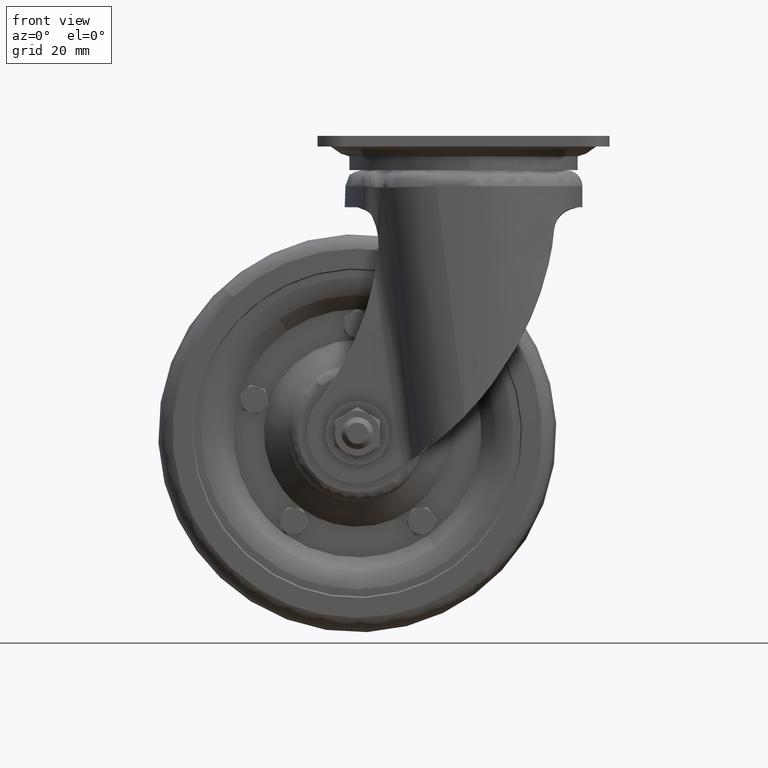
[diagram: clean part render]
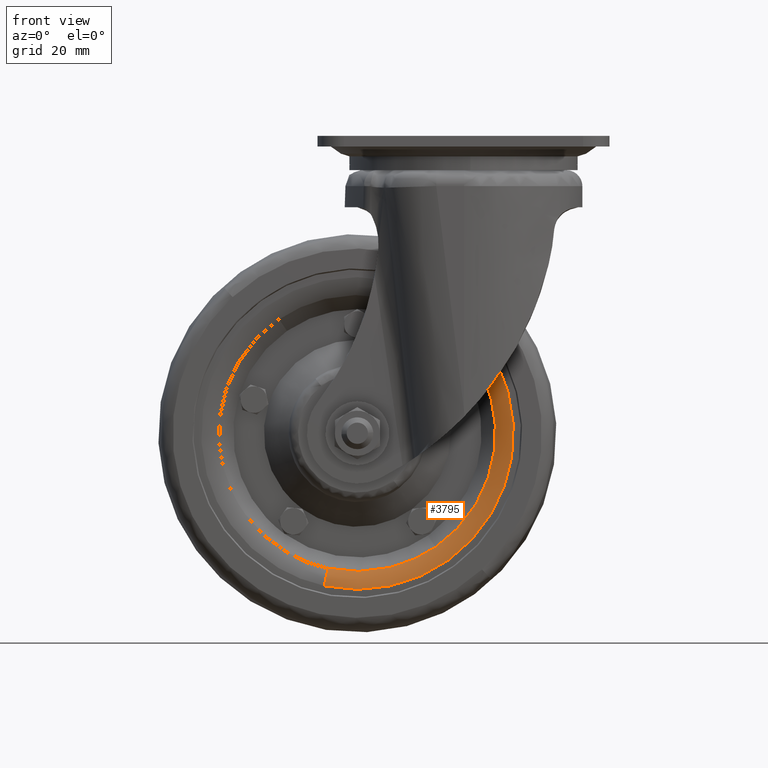
[diagram: same view with one face highlighted and labeled with its STEP entity id]
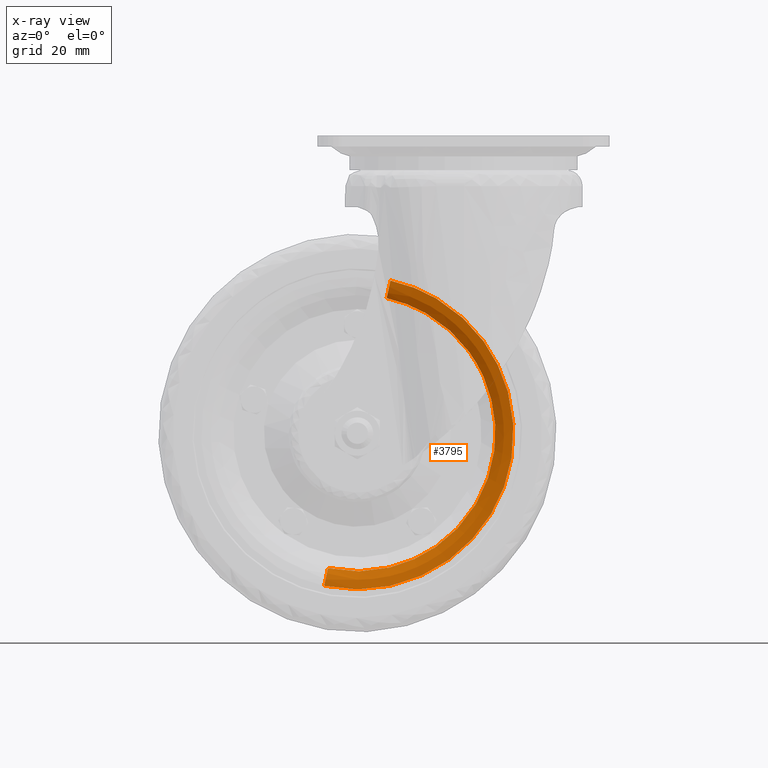
[diagram: x-ray of the same camera — body ghosted, the highlighted face saturated]
A machine part, front view. The second image highlights one B-rep face of the part: STEP entity #3795.
The next image is the same camera in x-ray: the body ghosted, the highlighted face saturated — about 0% of this face is hidden behind the body in this view.
In plain terms, the highlighted face is a freeform B-spline surface patch.
Its self-contained STEP definition (entity closure, byte-faithful):
#3442=CARTESIAN_POINT('',(-10.517624882507111,-17.857909509321590,-154.897126335676010));
#3443=VERTEX_POINT('',#3442);
#3444=CARTESIAN_POINT('',(2.110665305794981,-17.857909508588151,-81.404809436737750));
#3445=VERTEX_POINT('',#3444);
#3446=CARTESIAN_POINT('',(-10.517624882507112,-17.857909509321594,-154.897126335676010));
#3447=CARTESIAN_POINT('',(-9.956070941381086,-17.857909509314677,-154.511181006406620));
#3448=CARTESIAN_POINT('',(-9.404812297900421,-17.857909509307689,-154.110668167701990));
#3449=CARTESIAN_POINT('',(32.705855869027253,-17.857909508774039,-123.515477603812310));
#3450=CARTESIAN_POINT('',(2.110665305794981,-17.857909508588151,-81.404809436737750));
#3458=(BOUNDED_CURVE()B_SPLINE_CURVE(2,(#3446,#3447,#3448,#3449,#3450),.UNSPECIFIED.,.F.,.U.)B_SPLINE_CURVE_WITH_KNOTS((3,2,3),(0.245396694999986,0.250000000000000,0.500000000000000),.UNSPECIFIED.)CURVE()GEOMETRIC_REPRESENTATION_ITEM()RATIONAL_B_SPLINE_CURVE((0.989412394392386,0.994606892725463,1.0,0.707106781186547,1.0))REPRESENTATION_ITEM(''));
#3459=EDGE_CURVE('',#3443,#3445,#3458,.T.);
#3461=CARTESIAN_POINT('',(-28.964682815397381,-17.857909509715110,-61.131583760881007));
#3462=VERTEX_POINT('',#3461);
#3463=CARTESIAN_POINT('',(2.110665305794981,-17.857909508588151,-81.404809436737750));
#3464=CARTESIAN_POINT('',(-9.560266474887442,-17.857909509151636,-65.341149548055768));
#3465=CARTESIAN_POINT('',(-28.964682815397378,-17.857909509715114,-61.131583760881007));
#3473=(BOUNDED_CURVE()B_SPLINE_CURVE(2,(#3463,#3464,#3465),.UNSPECIFIED.,.F.,.U.)B_SPLINE_CURVE_WITH_KNOTS((3,3),(0.500000000000000,0.616465190487903),.UNSPECIFIED.)CURVE()GEOMETRIC_REPRESENTATION_ITEM()RATIONAL_B_SPLINE_CURVE((1.0,0.863552541913105,0.854236117407653))REPRESENTATION_ITEM(''));
#3474=EDGE_CURVE('',#3445,#3462,#3473,.T.);
#3526=CARTESIAN_POINT('',(-51.035322906648531,-17.857909509715110,-162.868416239119000));
#3527=VERTEX_POINT('',#3526);
#3528=CARTESIAN_POINT('',(-51.035322906648524,-17.857909509715110,-162.868416239118970));
#3529=CARTESIAN_POINT('',(-29.054208399745079,-17.857909509592400,-167.636967168618750));
#3530=CARTESIAN_POINT('',(-10.517624882507112,-17.857909509321594,-154.897126335676010));
#3538=(BOUNDED_CURVE()B_SPLINE_CURVE(2,(#3528,#3529,#3530),.UNSPECIFIED.,.F.,.U.)B_SPLINE_CURVE_WITH_KNOTS((3,3),(0.116465190487903,0.245396694999986),.UNSPECIFIED.)CURVE()GEOMETRIC_REPRESENTATION_ITEM()RATIONAL_B_SPLINE_CURVE((0.854236117407653,0.843922472419575,0.989412394392386))REPRESENTATION_ITEM(''));
#3539=EDGE_CURVE('',#3527,#3443,#3538,.T.);
#3701=CARTESIAN_POINT('',(-54.164787652704980,-20.493451642663306,-169.489376277149940));
#3702=CARTESIAN_POINT('',(-53.360984978528542,-20.493451642663306,-169.663752057229150));
#3703=CARTESIAN_POINT('',(5.292405606397751,-20.493451642663313,-182.387933085876570));
#3704=CARTESIAN_POINT('',(17.840167915625734,-20.493451642663317,-124.547762309227890));
#3705=CARTESIAN_POINT('',(30.387930224853637,-20.493451642663313,-66.707591532579286));
#3706=CARTESIAN_POINT('',(-28.265460360086049,-20.493451642663302,-53.983410503928894));
#3707=CARTESIAN_POINT('',(-29.069263034275597,-20.493451642663313,-53.809034723846935));
#3708=CARTESIAN_POINT('',(-53.130491093084323,-20.649926834028495,-165.291567064184650));
#3709=CARTESIAN_POINT('',(-52.385381180763488,-20.649926834028495,-165.453210122089100));
#3710=CARTESIAN_POINT('',(1.985205183395487,-20.649926834028509,-177.248285848010770));
#3711=CARTESIAN_POINT('',(13.616744085191717,-20.649926834028495,-123.631538901796220));
#3712=CARTESIAN_POINT('',(25.248282986987885,-20.649926834028509,-70.014791955581543));
#3713=CARTESIAN_POINT('',(-29.122303377183552,-20.649926834028502,-58.219716229657095));
#3714=CARTESIAN_POINT('',(-29.867413289516495,-20.649926834028498,-58.058073171750053));
#3715=CARTESIAN_POINT('',(-52.394812587387683,-17.608181403912067,-162.305732894798640));
#3716=CARTESIAN_POINT('',(-51.691449892473301,-17.608181403912063,-162.458319372232210));
#3717=CARTESIAN_POINT('',(-0.367153279563958,-17.608181403912059,-173.592537441434360));
#3718=CARTESIAN_POINT('',(10.612690650423758,-17.608181403912067,-122.979843929987720));
#3719=CARTESIAN_POINT('',(21.592534580411403,-17.608181403912059,-72.367150418540987));
#3720=CARTESIAN_POINT('',(-29.731762032509696,-17.608181403912067,-61.232932349336295));
#3721=CARTESIAN_POINT('',(-30.435124727435554,-17.608181403912059,-61.080345871900256));
#3729=(BOUNDED_SURFACE()B_SPLINE_SURFACE(2,2,((#3701,#3708,#3715),(#3702,#3709,#3716),(#3703,#3710,#3717),(#3704,#3711,#3718),(#3705,#3712,#3719),(#3706,#3713,#3720),(#3707,#3714,#3721)),.UNSPECIFIED.,.F.,.F.,.U.)B_SPLINE_SURFACE_WITH_KNOTS((3,1,2,1,3),(3,3),(0.0,1.961237259312395,100.023100224990800,198.084963190669210,200.046200450014200),(0.0,8.281329127914534),.UNSPECIFIED.)GEOMETRIC_REPRESENTATION_ITEM()RATIONAL_B_SPLINE_SURFACE(((0.942475955900028,0.865279168197968,0.942969271415175),(0.937018991882714,0.860269175893942,0.937509451086251),(0.658713826999516,0.604759568388501,0.659058614310923),(0.931562027865400,0.855259183589917,0.932049630757326),(0.658713826999516,0.604759568388501,0.659058614310923),(0.937018991882804,0.860269175894025,0.937509451086341),(0.942475955900209,0.865279168198134,0.942969271415356)))REPRESENTATION_ITEM('')SURFACE());
#3730=ORIENTED_EDGE('',*,*,#3459,.F.);
#3731=ORIENTED_EDGE('',*,*,#3539,.F.);
#3732=CARTESIAN_POINT('',(-52.471053661721697,-20.500000000000000,-169.486561372482210));
#3733=VERTEX_POINT('',#3732);
#3734=CARTESIAN_POINT('',(-52.471053661721697,-20.500000000000004,-169.486561372482130));
#3735=CARTESIAN_POINT('',(-51.643920213268849,-20.499999999975536,-165.673806657025350));
#3736=CARTESIAN_POINT('',(-51.035322906648531,-17.857909509715114,-162.868416239119030));
#3744=(BOUNDED_CURVE()B_SPLINE_CURVE(2,(#3734,#3735,#3736),.UNSPECIFIED.,.F.,.U.)B_SPLINE_CURVE_WITH_KNOTS((3,3),(-1.543202143004318,-0.452978582613576),.UNSPECIFIED.)CURVE()GEOMETRIC_REPRESENTATION_ITEM()RATIONAL_B_SPLINE_CURVE((0.924947443635576,0.861895910440424,0.925390761300254))REPRESENTATION_ITEM(''));
#3745=EDGE_CURVE('',#3733,#3527,#3744,.T.);
#3746=ORIENTED_EDGE('',*,*,#3745,.F.);
#3747=CARTESIAN_POINT('',(7.589399150005441,-20.500000000000000,-77.424276395918042));
#3748=VERTEX_POINT('',#3747);
#3749=CARTESIAN_POINT('',(-52.471053661721697,-20.499999999999993,-169.486561372482190));
#3750=CARTESIAN_POINT('',(-26.731986446810751,-20.499999999999996,-175.070357082930120));
#3751=CARTESIAN_POINT('',(-5.424279256931797,-20.500000000000000,-159.589402010986110));
#3752=CARTESIAN_POINT('',(42.165122754089950,-20.500000000000007,-125.013678406934740));
#3753=CARTESIAN_POINT('',(7.589399150005441,-20.500000000000000,-77.424276395918042));
#3761=(BOUNDED_CURVE()B_SPLINE_CURVE(2,(#3749,#3750,#3751,#3752,#3753),.UNSPECIFIED.,.F.,.U.)B_SPLINE_CURVE_WITH_KNOTS((3,2,3),(0.116465190487839,0.250000000000000,0.500000000000000),.UNSPECIFIED.)CURVE()GEOMETRIC_REPRESENTATION_ITEM()RATIONAL_B_SPLINE_CURVE((0.854236117407663,0.843554239273367,1.0,0.707106781186548,1.0))REPRESENTATION_ITEM(''));
#3762=EDGE_CURVE('',#3733,#3748,#3761,.T.);
#3763=ORIENTED_EDGE('',*,*,#3762,.T.);
#3764=CARTESIAN_POINT('',(-27.528952060324169,-20.500000000000000,-54.513438627517822));
#3765=VERTEX_POINT('',#3764);
#3766=CARTESIAN_POINT('',(7.589399150005441,-20.500000000000000,-77.424276395918042));
#3767=CARTESIAN_POINT('',(-5.599958524398176,-20.500000000000000,-59.270682509629609));
#3768=CARTESIAN_POINT('',(-27.528952060324176,-20.500000000000000,-54.513438627517822));
#3776=(BOUNDED_CURVE()B_SPLINE_CURVE(2,(#3766,#3767,#3768),.UNSPECIFIED.,.F.,.U.)B_SPLINE_CURVE_WITH_KNOTS((3,3),(0.500000000000000,0.616465190487839),.UNSPECIFIED.)CURVE()GEOMETRIC_REPRESENTATION_ITEM()RATIONAL_B_SPLINE_CURVE((1.0,0.863552541913180,0.854236117407663))REPRESENTATION_ITEM(''));
#3777=EDGE_CURVE('',#3748,#3765,#3776,.T.);
#3778=ORIENTED_EDGE('',*,*,#3777,.T.);
#3779=CARTESIAN_POINT('',(-27.528952060324180,-20.499999999999993,-54.513438627517822));
#3780=CARTESIAN_POINT('',(-28.356085508777060,-20.499999999975536,-58.326193342974591));
#3781=CARTESIAN_POINT('',(-28.964682815397385,-17.857909509715114,-61.131583760881007));
#3789=(BOUNDED_CURVE()B_SPLINE_CURVE(2,(#3779,#3780,#3781),.UNSPECIFIED.,.F.,.U.)B_SPLINE_CURVE_WITH_KNOTS((3,3),(-1.543202143004321,-0.452978582613577),.UNSPECIFIED.)CURVE()GEOMETRIC_REPRESENTATION_ITEM()RATIONAL_B_SPLINE_CURVE((0.924947443635576,0.861895910440424,0.925390761300254))REPRESENTATION_ITEM(''));
#3790=EDGE_CURVE('',#3765,#3462,#3789,.T.);
#3791=ORIENTED_EDGE('',*,*,#3790,.T.);
#3792=ORIENTED_EDGE('',*,*,#3474,.F.);
#3793=EDGE_LOOP('',(#3730,#3731,#3746,#3763,#3778,#3791,#3792));
#3794=FACE_OUTER_BOUND('',#3793,.T.);
#3795=ADVANCED_FACE('',(#3794),#3729,.T.);